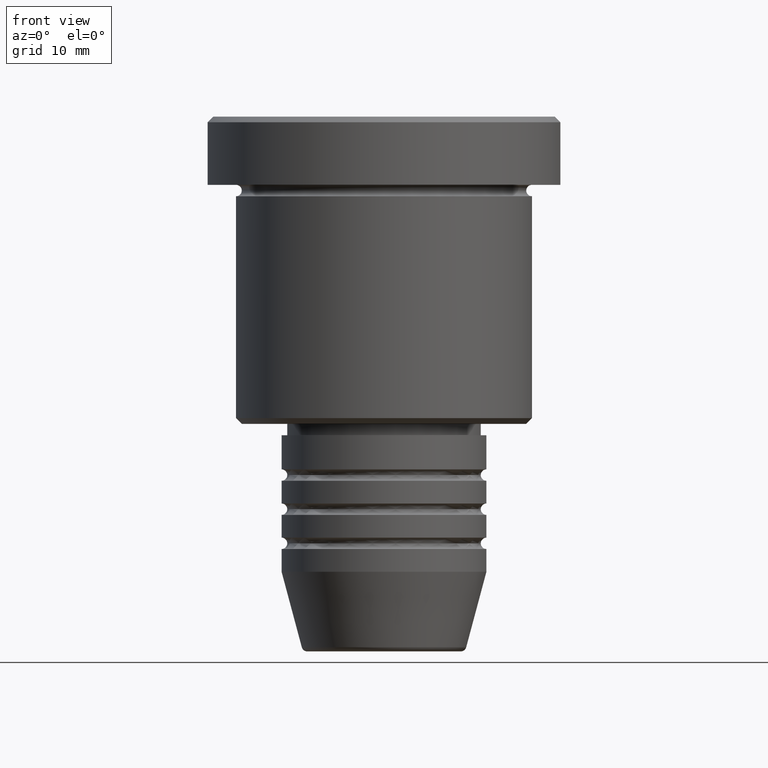
[diagram: clean part render]
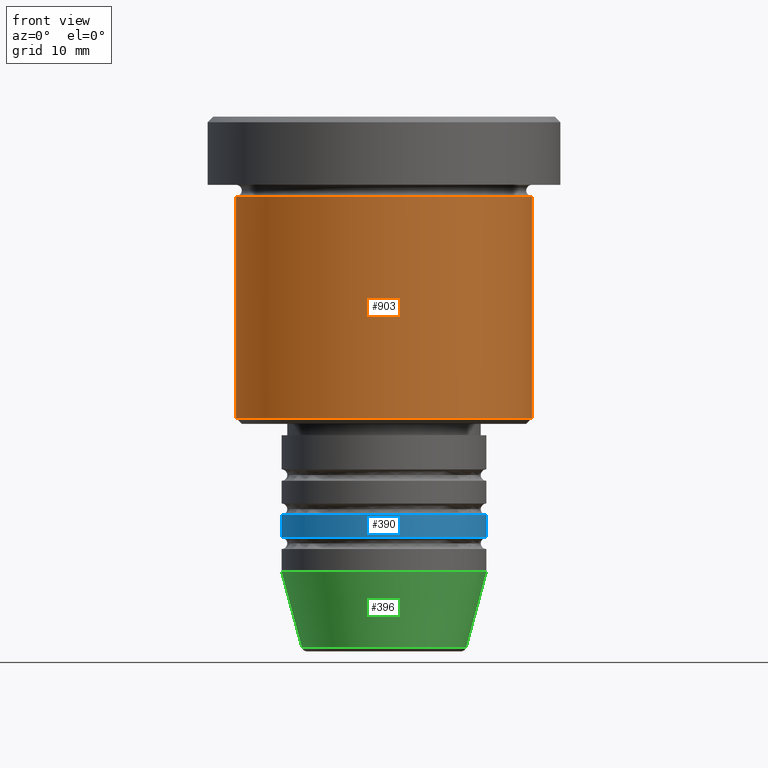
[diagram: same view with three faces highlighted in distinct colors, each labeled with its STEP entity id]
A machine part, front view with three faces highlighted in distinct colors.
Their STEP definitions:

[orange] entity #903 — the highlighted cylindrical surface (partial cylindrical patch) has radius 13 mm, axis along (-0, -0, 1).
#8 = CARTESIAN_POINT ( 'NONE',  ( 13.00000000000000000, 0.000000000000000000, 0.000000000000000000 ) ) ;
#77 = EDGE_CURVE ( 'NONE', #1139, #816, #792, .T. ) ;
#80 = FACE_OUTER_BOUND ( 'NONE', #952, .T. ) ;
#134 = ORIENTED_EDGE ( 'NONE', *, *, #731, .F. ) ;
#166 = DIRECTION ( 'NONE',  ( -0.000000000000000000, -0.000000000000000000, 1.000000000000000000 ) ) ;
#254 = CARTESIAN_POINT ( 'NONE',  ( -13.00000000000000000, 1.592040838891559095E-15, -26.49999999999999645 ) ) ;
#258 = ORIENTED_EDGE ( 'NONE', *, *, #77, .F. ) ;
#278 = DIRECTION ( 'NONE',  ( -0.000000000000000000, -0.000000000000000000, 1.000000000000000000 ) ) ;
#335 = DIRECTION ( 'NONE',  ( 1.000000000000000000, 0.000000000000000000, 0.000000000000000000 ) ) ;
#348 = LINE ( 'NONE', #8, #650 ) ;
#363 = CARTESIAN_POINT ( 'NONE',  ( -13.00000000000000000, 1.592040838891559095E-15, -6.999999999999995559 ) ) ;
#375 = CARTESIAN_POINT ( 'NONE',  ( 13.00000000000000000, 0.000000000000000000, -26.49999999999999645 ) ) ;
#379 = ORIENTED_EDGE ( 'NONE', *, *, #1098, .T. ) ;
#427 = CARTESIAN_POINT ( 'NONE',  ( 0.000000000000000000, 0.000000000000000000, -6.999999999999995559 ) ) ;
#443 = DIRECTION ( 'NONE',  ( -1.000000000000000000, 0.000000000000000000, 0.000000000000000000 ) ) ;
#451 = VERTEX_POINT ( 'NONE', #962 ) ;
#482 = AXIS2_PLACEMENT_3D ( 'NONE', #823, #899, #443 ) ;
#543 = CYLINDRICAL_SURFACE ( 'NONE', #1071, 13.00000000000000000 ) ;
#545 = VECTOR ( 'NONE', #166, 1000.000000000000000 ) ;
#589 = ORIENTED_EDGE ( 'NONE', *, *, #941, .T. ) ;
#607 = AXIS2_PLACEMENT_3D ( 'NONE', #427, #871, #335 ) ;
#608 = CIRCLE ( 'NONE', #482, 13.00000000000000000 ) ;
#648 = CIRCLE ( 'NONE', #607, 13.00000000000000000 ) ;
#650 = VECTOR ( 'NONE', #278, 1000.000000000000000 ) ;
#724 = CARTESIAN_POINT ( 'NONE',  ( -13.00000000000000000, 1.592040838891559095E-15, 0.000000000000000000 ) ) ;
#731 = EDGE_CURVE ( 'NONE', #816, #451, #648, .T. ) ;
#792 = LINE ( 'NONE', #724, #545 ) ;
#809 = DIRECTION ( 'NONE',  ( -0.000000000000000000, -0.000000000000000000, 1.000000000000000000 ) ) ;
#816 = VERTEX_POINT ( 'NONE', #363 ) ;
#820 = DIRECTION ( 'NONE',  ( 1.000000000000000000, 0.000000000000000000, 0.000000000000000000 ) ) ;
#823 = CARTESIAN_POINT ( 'NONE',  ( 0.000000000000000000, 0.000000000000000000, -26.49999999999999645 ) ) ;
#871 = DIRECTION ( 'NONE',  ( -0.000000000000000000, -0.000000000000000000, 1.000000000000000000 ) ) ;
#888 = CARTESIAN_POINT ( 'NONE',  ( 0.000000000000000000, 0.000000000000000000, 0.000000000000000000 ) ) ;
#899 = DIRECTION ( 'NONE',  ( -0.000000000000000000, -0.000000000000000000, 1.000000000000000000 ) ) ;
#903 = ADVANCED_FACE ( 'NONE', ( #80 ), #543, .T. ) ;
#941 = EDGE_CURVE ( 'NONE', #951, #451, #348, .T. ) ;
#951 = VERTEX_POINT ( 'NONE', #375 ) ;
#952 = EDGE_LOOP ( 'NONE', ( #258, #379, #589, #134 ) ) ;
#962 = CARTESIAN_POINT ( 'NONE',  ( 13.00000000000000000, 0.000000000000000000, -6.999999999999995559 ) ) ;
#1071 = AXIS2_PLACEMENT_3D ( 'NONE', #888, #809, #820 ) ;
#1098 = EDGE_CURVE ( 'NONE', #1139, #951, #608, .T. ) ;
#1139 = VERTEX_POINT ( 'NONE', #254 ) ;

[blue] entity #390 — the highlighted cylindrical surface (partial cylindrical patch) has radius 9 mm, axis along (-0, -0, 1).
#46 = DIRECTION ( 'NONE',  ( -0.000000000000000000, -0.000000000000000000, 1.000000000000000000 ) ) ;
#55 = EDGE_CURVE ( 'NONE', #1058, #493, #401, .T. ) ;
#85 = LINE ( 'NONE', #355, #720 ) ;
#100 = CARTESIAN_POINT ( 'NONE',  ( -9.000000000000000000, 1.102182119232617714E-15, -36.99999999999998579 ) ) ;
#125 = VECTOR ( 'NONE', #153, 1000.000000000000000 ) ;
#153 = DIRECTION ( 'NONE',  ( -0.000000000000000000, -0.000000000000000000, 1.000000000000000000 ) ) ;
#172 = EDGE_CURVE ( 'NONE', #654, #601, #944, .T. ) ;
#268 = CARTESIAN_POINT ( 'NONE',  ( 9.000000000000000000, 0.000000000000000000, -36.99999999999998579 ) ) ;
#269 = DIRECTION ( 'NONE',  ( -0.000000000000000000, -0.000000000000000000, 1.000000000000000000 ) ) ;
#355 = CARTESIAN_POINT ( 'NONE',  ( -9.000000000000000000, 1.102182119232617714E-15, 0.000000000000000000 ) ) ;
#390 = ADVANCED_FACE ( 'NONE', ( #686 ), #507, .T. ) ;
#401 = CIRCLE ( 'NONE', #999, 9.000000000000000000 ) ;
#406 = ORIENTED_EDGE ( 'NONE', *, *, #172, .F. ) ;
#410 = CARTESIAN_POINT ( 'NONE',  ( 9.000000000000000000, 0.000000000000000000, -34.99999999999999289 ) ) ;
#421 = LINE ( 'NONE', #1131, #125 ) ;
#431 = EDGE_CURVE ( 'NONE', #493, #601, #421, .T. ) ;
#493 = VERTEX_POINT ( 'NONE', #268 ) ;
#498 = EDGE_LOOP ( 'NONE', ( #841, #1095, #957, #406 ) ) ;
#507 = CYLINDRICAL_SURFACE ( 'NONE', #716, 9.000000000000000000 ) ;
#540 = DIRECTION ( 'NONE',  ( -0.000000000000000000, -0.000000000000000000, 1.000000000000000000 ) ) ;
#601 = VERTEX_POINT ( 'NONE', #410 ) ;
#602 = CARTESIAN_POINT ( 'NONE',  ( 0.000000000000000000, 0.000000000000000000, 0.000000000000000000 ) ) ;
#652 = CARTESIAN_POINT ( 'NONE',  ( 0.000000000000000000, 0.000000000000000000, -34.99999999999999289 ) ) ;
#654 = VERTEX_POINT ( 'NONE', #692 ) ;
#663 = AXIS2_PLACEMENT_3D ( 'NONE', #652, #1011, #933 ) ;
#686 = FACE_OUTER_BOUND ( 'NONE', #498, .T. ) ;
#692 = CARTESIAN_POINT ( 'NONE',  ( -9.000000000000000000, 1.102182119232617714E-15, -34.99999999999999289 ) ) ;
#716 = AXIS2_PLACEMENT_3D ( 'NONE', #602, #46, #1049 ) ;
#720 = VECTOR ( 'NONE', #269, 1000.000000000000000 ) ;
#800 = DIRECTION ( 'NONE',  ( 1.000000000000000000, 0.000000000000000000, 0.000000000000000000 ) ) ;
#841 = ORIENTED_EDGE ( 'NONE', *, *, #855, .F. ) ;
#855 = EDGE_CURVE ( 'NONE', #1058, #654, #85, .T. ) ;
#894 = CARTESIAN_POINT ( 'NONE',  ( 0.000000000000000000, 0.000000000000000000, -36.99999999999998579 ) ) ;
#933 = DIRECTION ( 'NONE',  ( 1.000000000000000000, 0.000000000000000000, 0.000000000000000000 ) ) ;
#944 = CIRCLE ( 'NONE', #663, 9.000000000000000000 ) ;
#957 = ORIENTED_EDGE ( 'NONE', *, *, #431, .T. ) ;
#999 = AXIS2_PLACEMENT_3D ( 'NONE', #894, #540, #800 ) ;
#1011 = DIRECTION ( 'NONE',  ( -0.000000000000000000, -0.000000000000000000, 1.000000000000000000 ) ) ;
#1049 = DIRECTION ( 'NONE',  ( 1.000000000000000000, 0.000000000000000000, 0.000000000000000000 ) ) ;
#1058 = VERTEX_POINT ( 'NONE', #100 ) ;
#1095 = ORIENTED_EDGE ( 'NONE', *, *, #55, .T. ) ;
#1131 = CARTESIAN_POINT ( 'NONE',  ( 9.000000000000000000, 0.000000000000000000, 0.000000000000000000 ) ) ;

[green] entity #396 — the highlighted conical surface has half-angle 15 deg.
#7 = ORIENTED_EDGE ( 'NONE', *, *, #182, .T. ) ;
#22 = DIRECTION ( 'NONE',  ( -0.000000000000000000, -0.000000000000000000, 1.000000000000000000 ) ) ;
#87 = CARTESIAN_POINT ( 'NONE',  ( 9.000000000000000000, 0.000000000000000000, -40.00000000000000000 ) ) ;
#122 = EDGE_CURVE ( 'NONE', #827, #596, #910, .T. ) ;
#128 = EDGE_CURVE ( 'NONE', #721, #373, #248, .T. ) ;
#140 = VECTOR ( 'NONE', #701, 1000.000000000000000 ) ;
#182 = EDGE_CURVE ( 'NONE', #721, #827, #1099, .T. ) ;
#224 = EDGE_LOOP ( 'NONE', ( #994, #7, #961, #982 ) ) ;
#231 = FACE_OUTER_BOUND ( 'NONE', #224, .T. ) ;
#238 = AXIS2_PLACEMENT_3D ( 'NONE', #1148, #783, #953 ) ;
#244 = DIRECTION ( 'NONE',  ( -0.2588190451025213501, 3.169619151431772337E-17, 0.9659258262890680902 ) ) ;
#248 = LINE ( 'NONE', #1167, #1176 ) ;
#373 = VERTEX_POINT ( 'NONE', #1135 ) ;
#396 = ADVANCED_FACE ( 'NONE', ( #231 ), #459, .T. ) ;
#418 = AXIS2_PLACEMENT_3D ( 'NONE', #656, #22, #744 ) ;
#446 = EDGE_CURVE ( 'NONE', #373, #596, #665, .T. ) ;
#459 = CONICAL_SURFACE ( 'NONE', #238, 9.000000000000000000, 0.2617993877991500740 ) ;
#583 = DIRECTION ( 'NONE',  ( -0.000000000000000000, -0.000000000000000000, 1.000000000000000000 ) ) ;
#596 = VERTEX_POINT ( 'NONE', #645 ) ;
#599 = CARTESIAN_POINT ( 'NONE',  ( -7.223655072137191269, 9.934123627281767082E-16, -46.62940952255126348 ) ) ;
#645 = CARTESIAN_POINT ( 'NONE',  ( 9.000000000000000000, 0.000000000000000000, -40.00000000000000000 ) ) ;
#656 = CARTESIAN_POINT ( 'NONE',  ( 0.000000000000000000, 0.000000000000000000, -46.62940952255126348 ) ) ;
#665 = CIRCLE ( 'NONE', #700, 9.000000000000000000 ) ;
#700 = AXIS2_PLACEMENT_3D ( 'NONE', #1041, #583, #869 ) ;
#701 = DIRECTION ( 'NONE',  ( 0.2588190451025213501, 0.000000000000000000, 0.9659258262890680902 ) ) ;
#721 = VERTEX_POINT ( 'NONE', #599 ) ;
#744 = DIRECTION ( 'NONE',  ( 1.000000000000000000, 0.000000000000000000, 0.000000000000000000 ) ) ;
#783 = DIRECTION ( 'NONE',  ( -0.000000000000000000, -0.000000000000000000, 1.000000000000000000 ) ) ;
#827 = VERTEX_POINT ( 'NONE', #921 ) ;
#869 = DIRECTION ( 'NONE',  ( 1.000000000000000000, 0.000000000000000000, 0.000000000000000000 ) ) ;
#910 = LINE ( 'NONE', #87, #140 ) ;
#921 = CARTESIAN_POINT ( 'NONE',  ( 7.223655072137190380, 0.000000000000000000, -46.62940952255126348 ) ) ;
#953 = DIRECTION ( 'NONE',  ( 1.000000000000000000, 0.000000000000000000, 0.000000000000000000 ) ) ;
#961 = ORIENTED_EDGE ( 'NONE', *, *, #122, .T. ) ;
#982 = ORIENTED_EDGE ( 'NONE', *, *, #446, .F. ) ;
#994 = ORIENTED_EDGE ( 'NONE', *, *, #128, .F. ) ;
#1041 = CARTESIAN_POINT ( 'NONE',  ( 0.000000000000000000, 0.000000000000000000, -40.00000000000000000 ) ) ;
#1099 = CIRCLE ( 'NONE', #418, 7.223655072137190380 ) ;
#1135 = CARTESIAN_POINT ( 'NONE',  ( -9.000000000000000000, 1.102182119232617714E-15, -40.00000000000000000 ) ) ;
#1148 = CARTESIAN_POINT ( 'NONE',  ( 0.000000000000000000, 0.000000000000000000, -40.00000000000000000 ) ) ;
#1167 = CARTESIAN_POINT ( 'NONE',  ( -9.000000000000000000, 1.102182119232617714E-15, -40.00000000000000000 ) ) ;
#1176 = VECTOR ( 'NONE', #244, 1000.000000000000000 ) ;